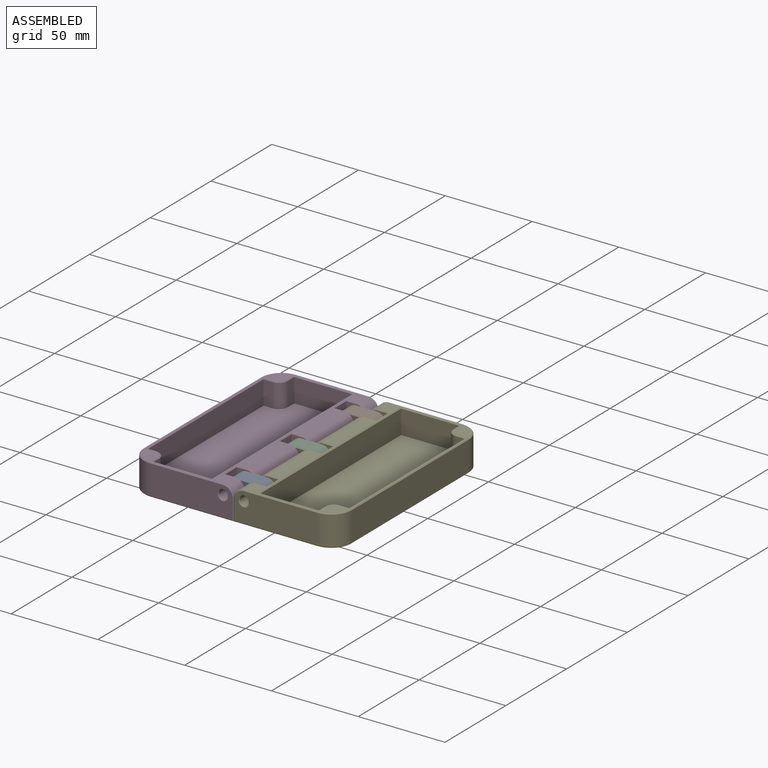
[diagram: assembled view]
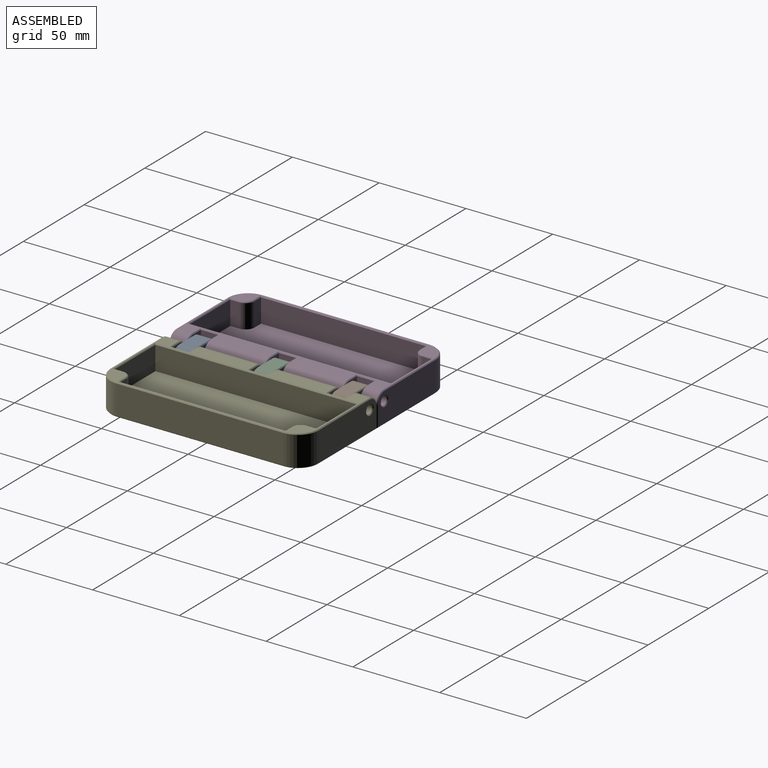
[diagram: assembled view, second angle]
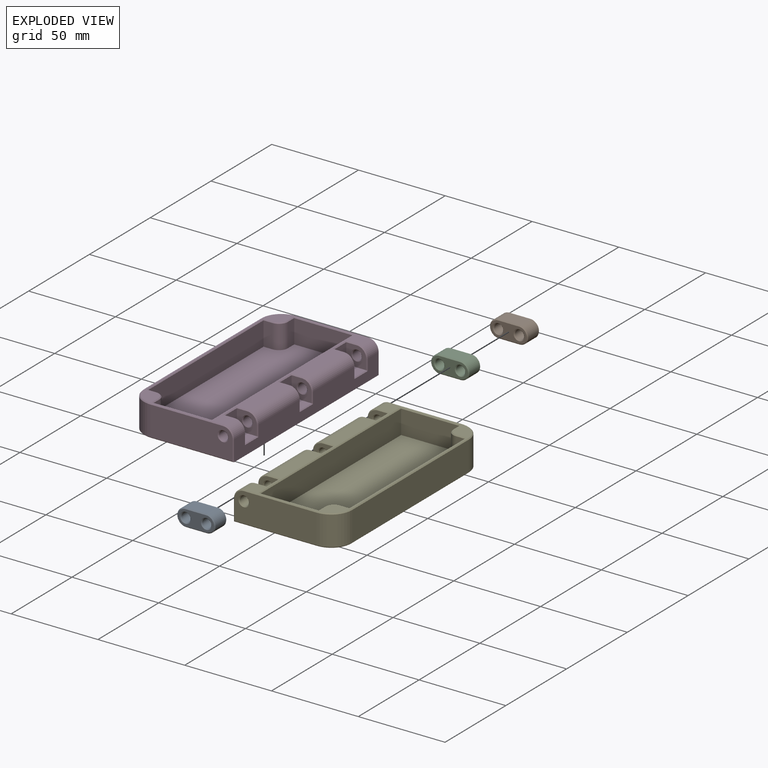
[diagram: exploded view]
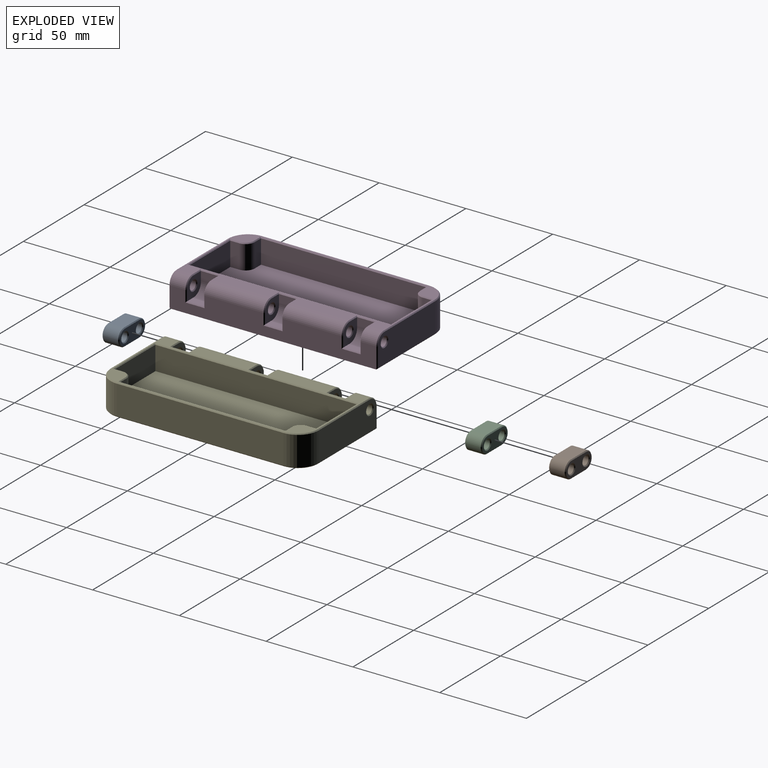
[diagram: exploded view, second angle]
ASSEMBLY  parts=5 mates=6
PART A: 20 faces, bbox 10x22x9.8 mm
  f0: plane 12x8.8mm, normal (1,0,0), area 105.6mm2, adj f1,f3,f8,f12
  f1: cylinder r=5mm len=10mm, axis (0,0,-1), area 138.2mm2, adj f0,f2,f9,f13
  f2: plane 12x8.8mm, normal (-1,0,0), area 105.6mm2, adj f1,f3,f11,f15
  f3: cylinder r=5mm len=10mm, axis (0,0,-1), area 138.2mm2, adj f0,f2,f10,f14
  f4: cylinder r=2.6mm len=8.8mm, axis (0,0,-1), area 143.8mm2, adj f17,f18
  f5: cylinder r=2.6mm len=8.8mm, axis (0,0,-1), area 143.8mm2, adj f16,f19
  f6: plane 21x9mm, normal (0,0,1), area 111.2mm2, adj f8,f9,f10,f11,f18,f19
  f7: plane 21x9mm, normal (0,0,-1), area 111.2mm2, adj f12,f13,f14,f15,f16,f17
  f8: plane 12x0.5mm, normal (0.71,0,0.71), area 8.5mm2, adj f0,f6,f9,f10
  f9: cone r=5mm half-angle=45deg, axis (0,0,-1), area 10.6mm2, adj f1,f6,f8,f11
  f10: cone r=5mm half-angle=45deg, axis (0,0,-1), area 10.6mm2, adj f3,f6,f8,f11
  f11: plane 12x0.5mm, normal (-0.71,0,0.71), area 8.5mm2, adj f2,f6,f9,f10
  f12: plane 12x0.5mm, normal (0.71,0,-0.71), area 8.5mm2, adj f0,f7,f13,f14
  f13: cone r=4.5mm half-angle=45deg, axis (0,0,1), area 10.6mm2, adj f1,f7,f12,f15
  f14: cone r=4.5mm half-angle=45deg, axis (0,0,1), area 10.6mm2, adj f3,f7,f12,f15
  f15: plane 12x0.5mm, normal (-0.71,0,-0.71), area 8.5mm2, adj f2,f7,f13,f14
  f16: cone r=3.1mm half-angle=45deg, axis (0,0,-1), area 12.7mm2, adj f5,f7
  f17: cone r=3.1mm half-angle=45deg, axis (0,0,-1), area 12.7mm2, adj f4,f7
  f18: cone r=2.6mm half-angle=45deg, axis (0,0,1), area 12.7mm2, adj f4,f6
  f19: cone r=2.6mm half-angle=45deg, axis (0,0,1), area 12.7mm2, adj f5,f6
PART B: same geometry as A
PART C: same geometry as A
PART D: 272 faces, bbox 60x120x18 mm
  f0: plane 119x59.5mm, normal (0,0,-1), area 5264.4mm2, adj f9,f88,f90,f92,f94,f96,f98,f99
  f1: cylinder r=6mm len=34mm, axis (0,-1,0), area 320.4mm2, adj f9,f10,f56,f59
  f2: cylinder r=6mm len=34mm, axis (0,-1,0), area 320.4mm2, adj f9,f10,f43,f51
  f3: cylinder r=6mm len=9mm, axis (0,-1,0), area 84.8mm2, adj f9,f10,f48,f84
  f4: plane 47.5x17mm, normal (0,1,0), area 770.8mm2, adj f5,f67,f84,f85,f86,f88
  f5: cylinder r=12mm len=17mm, axis (0,0,-1), area 320.4mm2, adj f4,f6,f87,f90
  f6: plane 96x17mm, normal (-1,0,0), area 1632mm2, adj f5,f7,f89,f92
  f7: cylinder r=12mm len=17mm, axis (0,0,-1), area 320.4mm2, adj f6,f8,f91,f94
  f8: plane 47.5x17mm, normal (0,-1,0), area 770.8mm2, adj f7,f66,f93,f95,f96,f97
  f9: plane 119x12mm, normal (1,0,0), area 1213.5mm2, adj f0,f1,f2,f3,f22,f42,f44,f46
  f10: plane 119x53.5mm, normal (0,0,1), area 1036.7mm2, adj f1,f2,f3,f22,f45,f47,f49,f53
  f11: cylinder r=5.2mm len=13.7mm, axis (0,0,-1), area 111.9mm2, adj f12,f20,f21,f74
  f12: plane 13.7x5.19mm, normal (0,-1,0), area 71.1mm2, adj f11,f13,f21,f76
  f13: plane 95.22x13.7mm, normal (1,0,0), area 1304.5mm2, adj f12,f14,f21,f78
  f14: plane 13.7x5.19mm, normal (0,1,0), area 71.1mm2, adj f13,f15,f21,f80
  f15: cylinder r=5.2mm len=13.7mm, axis (0,0,-1), area 111.9mm2, adj f14,f16,f21,f82
  f16: plane 13.7x5.19mm, normal (1,0,0), area 71.1mm2, adj f15,f17,f21,f83
  f17: plane 33.61x13.7mm, normal (0,1,0), area 460.4mm2, adj f16,f18,f21,f81
  f18: plane 116x13.7mm, normal (-1,0,0), area 1589.2mm2, adj f17,f19,f21,f79
  f19: plane 33.61x13.7mm, normal (0,-1,0), area 460.4mm2, adj f18,f20,f21,f77
  f20: plane 13.7x5.19mm, normal (1,0,0), area 71.1mm2, adj f11,f19,f21,f75
  f21: plane 116x44mm, normal (0,0,1), area 4899.6mm2, adj f11,f12,f13,f14,f15,f16,f17,f18
  f22: cylinder r=6mm len=9mm, axis (0,-1,0), area 84.8mm2, adj f9,f10,f64,f95
  f23: cylinder r=6mm len=10mm, axis (0,-1,0), area 94.2mm2, adj f24,f25,f26,f27
  f24: plane 10x5.5mm, normal (0,0,1), area 55mm2, adj f23,f26,f27,f44
  f25: plane 10x5.5mm, normal (1,0,0), area 55mm2, adj f23,f26,f27,f47
  f26: plane 11.5x11.5mm, normal (0,-1,0), area 87.8mm2, adj f23,f24,f25,f46,f48,f49,f68
  f27: plane 11.5x11.5mm, normal (0,1,0), area 87.8mm2, adj f23,f24,f25,f42,f43,f45,f69
  f28: cylinder r=6mm len=10mm, axis (0,-1,0), area 94.2mm2, adj f29,f30,f31,f32
  f29: plane 10x5.5mm, normal (0,0,1), area 55mm2, adj f28,f31,f32,f52
  f30: plane 10x5.5mm, normal (1,0,0), area 55mm2, adj f28,f31,f32,f55
  f31: plane 11.5x11.5mm, normal (0,-1,0), area 87.8mm2, adj f28,f29,f30,f50,f51,f53,f71
  f32: plane 11.5x11.5mm, normal (0,1,0), area 87.8mm2, adj f28,f29,f30,f54,f56,f57,f70
  f33: cylinder r=6mm len=10mm, axis (0,-1,0), area 94.2mm2, adj f34,f35,f36,f37
  f34: plane 10x5.5mm, normal (0,0,1), area 55mm2, adj f33,f36,f37,f60
  f35: plane 10x5.5mm, normal (1,0,0), area 55mm2, adj f33,f36,f37,f63
  f36: plane 11.5x11.5mm, normal (0,-1,0), area 87.8mm2, adj f33,f34,f35,f58,f59,f61,f73
  f37: plane 11.5x11.5mm, normal (0,1,0), area 87.8mm2, adj f33,f34,f35,f62,f64,f65,f72
  f38: cylinder r=2.6mm len=9mm, axis (0,-1,0), area 147mm2, adj f66,f72
  f39: cylinder r=2.6mm len=34mm, axis (0,-1,0), area 555.4mm2, adj f70,f73
  f40: cylinder r=2.6mm len=34mm, axis (0,-1,0), area 555.4mm2, adj f69,f71
  f41: cylinder r=2.6mm len=9mm, axis (0,-1,0), area 147mm2, adj f67,f68
  f42: plane 6.5x0.5mm, normal (0.71,0.71,0), area 4.4mm2, adj f9,f27,f43,f44
  f43: cone r=5.5mm half-angle=45deg, axis (0,-1,0), area 6.4mm2, adj f2,f27,f42,f45
  f44: plane 11x0.5mm, normal (0.71,0,0.71), area 7.4mm2, adj f9,f24,f42,f46
  f45: plane 6.5x0.5mm, normal (0,0.71,0.71), area 4.4mm2, adj f10,f27,f43,f47
  f46: plane 6.5x0.5mm, normal (0.71,-0.71,0), area 4.4mm2, adj f9,f26,f44,f48
  f47: plane 11x0.5mm, normal (0.71,0,0.71), area 7.4mm2, adj f10,f25,f45,f49
  f48: cone r=6mm half-angle=45deg, axis (0,1,0), area 6.4mm2, adj f3,f26,f46,f49
  f49: plane 6.5x0.5mm, normal (0,-0.71,0.71), area 4.4mm2, adj f10,f26,f47,f48
  f50: plane 6.5x0.5mm, normal (0.71,-0.71,0), area 4.4mm2, adj f9,f31,f51,f52
  f51: cone r=6mm half-angle=45deg, axis (0,1,0), area 6.4mm2, adj f2,f31,f50,f53
  f52: plane 11x0.5mm, normal (0.71,0,0.71), area 7.4mm2, adj f9,f29,f50,f54
  f53: plane 6.5x0.5mm, normal (0,-0.71,0.71), area 4.4mm2, adj f10,f31,f51,f55
  f54: plane 6.5x0.5mm, normal (0.71,0.71,0), area 4.4mm2, adj f9,f32,f52,f56
  f55: plane 11x0.5mm, normal (0.71,0,0.71), area 7.4mm2, adj f10,f30,f53,f57
  f56: cone r=5.5mm half-angle=45deg, axis (0,-1,0), area 6.4mm2, adj f1,f32,f54,f57
  f57: plane 6.5x0.5mm, normal (0,0.71,0.71), area 4.4mm2, adj f10,f32,f55,f56
  f58: plane 6.5x0.5mm, normal (0.71,-0.71,0), area 4.4mm2, adj f9,f36,f59,f60
  f59: cone r=6mm half-angle=45deg, axis (0,1,0), area 6.4mm2, adj f1,f36,f58,f61
  f60: plane 11x0.5mm, normal (0.71,0,0.71), area 7.4mm2, adj f9,f34,f58,f62
  f61: plane 6.5x0.5mm, normal (0,-0.71,0.71), area 4.4mm2, adj f10,f36,f59,f63
  f62: plane 6.5x0.5mm, normal (0.71,0.71,0), area 4.4mm2, adj f9,f37,f60,f64
  f63: plane 11x0.5mm, normal (0.71,0,0.71), area 7.4mm2, adj f10,f35,f61,f65
  f64: cone r=5.5mm half-angle=45deg, axis (0,-1,0), area 6.4mm2, adj f22,f37,f62,f65
  f65: plane 6.5x0.5mm, normal (0,0.71,0.71), area 4.4mm2, adj f10,f37,f63,f64
  f66: cone r=2.6mm half-angle=45deg, axis (0,-1,0), area 12.7mm2, adj f8,f38
  f67: cone r=2.6mm half-angle=45deg, axis (0,1,0), area 12.7mm2, adj f4,f41
  f68: cone r=2.6mm half-angle=45deg, axis (0,-1,0), area 12.7mm2, adj f26,f41
  f69: cone r=3.1mm half-angle=45deg, axis (0,1,0), area 12.7mm2, adj f27,f40
  f70: cone r=3.1mm half-angle=45deg, axis (0,1,0), area 12.7mm2, adj f32,f39
  f71: cone r=2.6mm half-angle=45deg, axis (0,-1,0), area 12.7mm2, adj f31,f40
  f72: cone r=3.1mm half-angle=45deg, axis (0,1,0), area 12.7mm2, adj f37,f38
  f73: cone r=2.6mm half-angle=45deg, axis (0,-1,0), area 12.7mm2, adj f36,f39
  f74: cone r=5.2mm half-angle=45deg, axis (0,0,-1), area 5.5mm2, adj f10,f11,f75,f76
  f75: plane 5.69x0.5mm, normal (0.71,0,0.71), area 3.8mm2, adj f10,f20,f74,f77
  f76: plane 5.69x0.5mm, normal (0,-0.71,0.71), area 3.8mm2, adj f10,f12,f74,f78
  f77: plane 34.61x0.5mm, normal (0,-0.71,0.71), area 24.1mm2, adj f10,f19,f75,f79
  f78: plane 96.22x0.5mm, normal (0.71,0,0.71), area 67.7mm2, adj f10,f13,f76,f80
  f79: plane 117x0.5mm, normal (-0.71,0,0.71), area 82.4mm2, adj f10,f18,f77,f81
  f80: plane 5.69x0.5mm, normal (0,0.71,0.71), area 3.8mm2, adj f10,f14,f78,f82
  f81: plane 34.61x0.5mm, normal (0,0.71,0.71), area 24.1mm2, adj f10,f17,f79,f83
  f82: cone r=4.7mm half-angle=45deg, axis (0,0,-1), area 5.5mm2, adj f10,f15,f80,f83
  f83: plane 5.69x0.5mm, normal (0.71,0,0.71), area 3.8mm2, adj f10,f16,f81,f82
  f84: cone r=5.5mm half-angle=45deg, axis (0,-1,0), area 6.4mm2, adj f3,f4,f85,f86
  f85: plane 42x0.5mm, normal (0,0.71,0.71), area 29.7mm2, adj f4,f10,f84,f87
  f86: plane 12x0.5mm, normal (0.71,0.71,0), area 8.3mm2, adj f4,f9,f84,f88
  f87: cone r=11.5mm half-angle=45deg, axis (0,0,-1), area 13.1mm2, adj f5,f10,f85,f89
  f88: plane 48x0.5mm, normal (0,0.71,-0.71), area 33.8mm2, adj f0,f4,f86,f90
  f89: plane 96x0.5mm, normal (-0.71,0,0.71), area 67.9mm2, adj f6,f10,f87,f91
  f90: cone r=12mm half-angle=45deg, axis (0,0,1), area 13.1mm2, adj f0,f5,f88,f92
  f91: cone r=12mm half-angle=45deg, axis (0,0,-1), area 13.1mm2, adj f7,f10,f89,f93
  f92: plane 96x0.5mm, normal (-0.71,0,-0.71), area 67.9mm2, adj f0,f6,f90,f94
  f93: plane 42x0.5mm, normal (0,-0.71,0.71), area 29.7mm2, adj f8,f10,f91,f95
  f94: cone r=11.5mm half-angle=45deg, axis (0,0,1), area 13.1mm2, adj f0,f7,f92,f96
  f95: cone r=5.5mm half-angle=45deg, axis (0,1,0), area 6.4mm2, adj f8,f22,f93,f97
  f96: plane 48x0.5mm, normal (0,-0.71,-0.71), area 33.8mm2, adj f0,f8,f94,f97
  f97: plane 12x0.5mm, normal (0.71,-0.71,0), area 8.3mm2, adj f8,f9,f95,f96
  f98: plane 8x0.2mm, normal (1,0,0), area 1.6mm2, adj f0,f99,f113,f114
  f99: cylinder r=3.6mm len=3.6mm, axis (0,0,-1), area 1.1mm2, adj f0,f98,f100,f114
  f100: plane 8x0.2mm, normal (0,-1,0), area 1.6mm2, adj f0,f99,f101,f114
  f101: cylinder r=3.6mm len=3.6mm, axis (0,0,-1), area 1.1mm2, adj f0,f100,f102,f114
  f102: plane 8x0.2mm, normal (-1,0,0), area 1.6mm2, adj f0,f101,f103,f114
  f103: cylinder r=3.6mm len=3.6mm, axis (0,0,-1), area 1.1mm2, adj f0,f102,f104,f114
  f104: plane 8x0.2mm, normal (0,1,0), area 1.6mm2, adj f0,f103,f113,f114
  f105: cylinder r=2mm len=2mm, axis (0,0,-1), area 0.6mm2, adj f106,f112,f114,f115
  f106: plane 8x0.2mm, normal (0,1,0), area 1.6mm2, adj f105,f107,f114,f115
  f107: cylinder r=2mm len=2mm, axis (0,0,-1), area 0.6mm2, adj f106,f108,f114,f115
  f108: plane 8x0.2mm, normal (-1,0,0), area 1.6mm2, adj f107,f109,f114,f115
  f109: cylinder r=2mm len=2mm, axis (0,0,-1), area 0.6mm2, adj f108,f110,f114,f115
  f110: plane 8x0.2mm, normal (0,-1,0), area 1.6mm2, adj f109,f111,f114,f115
  f111: cylinder r=2mm len=2mm, axis (0,0,-1), area 0.6mm2, adj f110,f112,f114,f115
  f112: plane 8x0.2mm, normal (1,0,0), area 1.6mm2, adj f105,f111,f114,f115
  f113: cylinder r=3.6mm len=3.6mm, axis (0,0,-1), area 1.1mm2, adj f0,f98,f104,f114
  f114: plane 15.2x15.2mm, normal (0,0,-1), area 79.3mm2, adj f98,f99,f100,f101,f102,f103,f104,f105
  f115: plane 12x12mm, normal (0,0,-1), area 140.6mm2, adj f105,f106,f107,f108,f109,f110,f111,f112
  f116: cylinder r=2mm len=2mm, axis (0,0,-1), area 0.6mm2, adj f117,f131,f132,f235
  f117: plane 8x0.2mm, normal (-1,0,0), area 1.6mm2, adj f116,f118,f132,f235
  f118: cylinder r=2mm len=2mm, axis (0,0,-1), area 0.6mm2, adj f117,f119,f132,f235
  f119: plane 8x0.2mm, normal (0,-1,0), area 1.6mm2, adj f118,f120,f132,f235
  f120: cylinder r=2mm len=2mm, axis (0,0,-1), area 0.6mm2, adj f119,f121,f132,f235
  f121: plane 8x0.2mm, normal (1,0,0), area 1.6mm2, adj f120,f122,f132,f235
  f122: cylinder r=2mm len=2mm, axis (0,0,-1), area 0.6mm2, adj f121,f131,f132,f235
  f123: plane 8x0.2mm, normal (0,-1,0), area 1.6mm2, adj f0,f124,f130,f132
  f124: cylinder r=3.6mm len=3.6mm, axis (0,0,-1), area 1.1mm2, adj f0,f123,f125,f132
  f125: plane 8x0.2mm, normal (-1,0,0), area 1.6mm2, adj f0,f124,f126,f132
  f126: cylinder r=3.6mm len=3.6mm, axis (0,0,-1), area 1.1mm2, adj f0,f125,f127,f132
  f127: plane 8x0.2mm, normal (0,1,0), area 1.6mm2, adj f0,f126,f128,f132
  f128: cylinder r=3.6mm len=3.6mm, axis (0,0,-1), area 1.1mm2, adj f0,f127,f129,f132
  f129: plane 8x0.2mm, normal (1,0,0), area 1.6mm2, adj f0,f128,f130,f132
  f130: cylinder r=3.6mm len=3.6mm, axis (0,0,-1), area 1.1mm2, adj f0,f123,f129,f132
  f131: plane 8x0.2mm, normal (0,1,0), area 1.6mm2, adj f116,f122,f132,f235
  f132: plane 15.2x15.2mm, normal (0,0,-1), area 79.3mm2, adj f116,f117,f118,f119,f120,f121,f122,f123
  f133: cylinder r=2mm len=2mm, axis (0,0,-1), area 0.6mm2, adj f134,f148,f149,f236
  f134: plane 8x0.2mm, normal (-1,0,0), area 1.6mm2, adj f133,f135,f149,f236
  f135: cylinder r=2mm len=2mm, axis (0,0,-1), area 0.6mm2, adj f134,f136,f149,f236
  f136: plane 8x0.2mm, normal (0,-1,0), area 1.6mm2, adj f135,f137,f149,f236
  f137: cylinder r=2mm len=2mm, axis (0,0,-1), area 0.6mm2, adj f136,f138,f149,f236
  f138: plane 8x0.2mm, normal (1,0,0), area 1.6mm2, adj f137,f139,f149,f236
  f139: cylinder r=2mm len=2mm, axis (0,0,-1), area 0.6mm2, adj f138,f148,f149,f236
  f140: plane 8x0.2mm, normal (0,-1,0), area 1.6mm2, adj f0,f141,f147,f149
  f141: cylinder r=3.6mm len=3.6mm, axis (0,0,-1), area 1.1mm2, adj f0,f140,f142,f149
  f142: plane 8x0.2mm, normal (-1,0,0), area 1.6mm2, adj f0,f141,f143,f149
  f143: cylinder r=3.6mm len=3.6mm, axis (0,0,-1), area 1.1mm2, adj f0,f142,f144,f149
  f144: plane 8x0.2mm, normal (0,1,0), area 1.6mm2, adj f0,f143,f145,f149
  f145: cylinder r=3.6mm len=3.6mm, axis (0,0,-1), area 1.1mm2, adj f0,f144,f146,f149
  f146: plane 8x0.2mm, normal (1,0,0), area 1.6mm2, adj f0,f145,f147,f149
  f147: cylinder r=3.6mm len=3.6mm, axis (0,0,-1), area 1.1mm2, adj f0,f140,f146,f149
  f148: plane 8x0.2mm, normal (0,1,0), area 1.6mm2, adj f133,f139,f149,f236
  f149: plane 15.2x15.2mm, normal (0,0,-1), area 79.3mm2, adj f133,f134,f135,f136,f137,f138,f139,f140
  f150: cylinder r=2mm len=2mm, axis (0,0,-1), area 0.6mm2, adj f151,f165,f166,f237
  f151: plane 8x0.2mm, normal (-1,0,0), area 1.6mm2, adj f150,f152,f166,f237
  f152: cylinder r=2mm len=2mm, axis (0,0,-1), area 0.6mm2, adj f151,f153,f166,f237
  f153: plane 8x0.2mm, normal (0,-1,0), area 1.6mm2, adj f152,f154,f166,f237
  f154: cylinder r=2mm len=2mm, axis (0,0,-1), area 0.6mm2, adj f153,f155,f166,f237
  f155: plane 8x0.2mm, normal (1,0,0), area 1.6mm2, adj f154,f156,f166,f237
  f156: cylinder r=2mm len=2mm, axis (0,0,-1), area 0.6mm2, adj f155,f165,f166,f237
  f157: plane 8x0.2mm, normal (0,-1,0), area 1.6mm2, adj f0,f158,f164,f166
  f158: cylinder r=3.6mm len=3.6mm, axis (0,0,-1), area 1.1mm2, adj f0,f157,f159,f166
  f159: plane 8x0.2mm, normal (-1,0,0), area 1.6mm2, adj f0,f158,f160,f166
  f160: cylinder r=3.6mm len=3.6mm, axis (0,0,-1), area 1.1mm2, adj f0,f159,f161,f166
  f161: plane 8x0.2mm, normal (0,1,0), area 1.6mm2, adj f0,f160,f162,f166
  f162: cylinder r=3.6mm len=3.6mm, axis (0,0,-1), area 1.1mm2, adj f0,f161,f163,f166
  f163: plane 8x0.2mm, normal (1,0,0), area 1.6mm2, adj f0,f162,f164,f166
  f164: cylinder r=3.6mm len=3.6mm, axis (0,0,-1), area 1.1mm2, adj f0,f157,f163,f166
  f165: plane 8x0.2mm, normal (0,1,0), area 1.6mm2, adj f150,f156,f166,f237
  f166: plane 15.2x15.2mm, normal (0,0,-1), area 79.3mm2, adj f150,f151,f152,f153,f154,f155,f156,f157
  f167: cylinder r=2mm len=2mm, axis (0,0,-1), area 0.6mm2, adj f168,f182,f183,f238
  f168: plane 8x0.2mm, normal (-1,0,0), area 1.6mm2, adj f167,f169,f183,f238
  f169: cylinder r=2mm len=2mm, axis (0,0,-1), area 0.6mm2, adj f168,f170,f183,f238
  f170: plane 8x0.2mm, normal (0,-1,0), area 1.6mm2, adj f169,f171,f183,f238
  f171: cylinder r=2mm len=2mm, axis (0,0,-1), area 0.6mm2, adj f170,f172,f183,f238
  f172: plane 8x0.2mm, normal (1,0,0), area 1.6mm2, adj f171,f173,f183,f238
  f173: cylinder r=2mm len=2mm, axis (0,0,-1), area 0.6mm2, adj f172,f182,f183,f238
  f174: plane 8x0.2mm, normal (0,-1,0), area 1.6mm2, adj f0,f175,f181,f183
  f175: cylinder r=3.6mm len=3.6mm, axis (0,0,-1), area 1.1mm2, adj f0,f174,f176,f183
  f176: plane 8x0.2mm, normal (-1,0,0), area 1.6mm2, adj f0,f175,f177,f183
  f177: cylinder r=3.6mm len=3.6mm, axis (0,0,-1), area 1.1mm2, adj f0,f176,f178,f183
  f178: plane 8x0.2mm, normal (0,1,0), area 1.6mm2, adj f0,f177,f179,f183
  f179: cylinder r=3.6mm len=3.6mm, axis (0,0,-1), area 1.1mm2, adj f0,f178,f180,f183
  f180: plane 8x0.2mm, normal (1,0,0), area 1.6mm2, adj f0,f179,f181,f183
  f181: cylinder r=3.6mm len=3.6mm, axis (0,0,-1), area 1.1mm2, adj f0,f174,f180,f183
  f182: plane 8x0.2mm, normal (0,1,0), area 1.6mm2, adj f167,f173,f183,f238
  f183: plane 15.2x15.2mm, normal (0,0,-1), area 79.3mm2, adj f167,f168,f169,f170,f171,f172,f173,f174
  f184: cylinder r=2mm len=2mm, axis (0,0,-1), area 0.6mm2, adj f185,f199,f200,f239
  f185: plane 8x0.2mm, normal (-1,0,0), area 1.6mm2, adj f184,f186,f200,f239
  f186: cylinder r=2mm len=2mm, axis (0,0,-1), area 0.6mm2, adj f185,f187,f200,f239
  f187: plane 8x0.2mm, normal (0,-1,0), area 1.6mm2, adj f186,f188,f200,f239
  f188: cylinder r=2mm len=2mm, axis (0,0,-1), area 0.6mm2, adj f187,f189,f200,f239
  f189: plane 8x0.2mm, normal (1,0,0), area 1.6mm2, adj f188,f190,f200,f239
  f190: cylinder r=2mm len=2mm, axis (0,0,-1), area 0.6mm2, adj f189,f199,f200,f239
  f191: plane 8x0.2mm, normal (0,-1,0), area 1.6mm2, adj f0,f192,f198,f200
  f192: cylinder r=3.6mm len=3.6mm, axis (0,0,-1), area 1.1mm2, adj f0,f191,f193,f200
  f193: plane 8x0.2mm, normal (-1,0,0), area 1.6mm2, adj f0,f192,f194,f200
  f194: cylinder r=3.6mm len=3.6mm, axis (0,0,-1), area 1.1mm2, adj f0,f193,f195,f200
  f195: plane 8x0.2mm, normal (0,1,0), area 1.6mm2, adj f0,f194,f196,f200
  f196: cylinder r=3.6mm len=3.6mm, axis (0,0,-1), area 1.1mm2, adj f0,f195,f197,f200
  f197: plane 8x0.2mm, normal (1,0,0), area 1.6mm2, adj f0,f196,f198,f200
  f198: cylinder r=3.6mm len=3.6mm, axis (0,0,-1), area 1.1mm2, adj f0,f191,f197,f200
  f199: plane 8x0.2mm, normal (0,1,0), area 1.6mm2, adj f184,f190,f200,f239
  f200: plane 15.2x15.2mm, normal (0,0,-1), area 79.3mm2, adj f184,f185,f186,f187,f188,f189,f190,f191
  f201: cylinder r=2mm len=2mm, axis (0,0,-1), area 0.6mm2, adj f202,f216,f217,f240
  f202: plane 8x0.2mm, normal (-1,0,0), area 1.6mm2, adj f201,f203,f217,f240
  f203: cylinder r=2mm len=2mm, axis (0,0,-1), area 0.6mm2, adj f202,f204,f217,f240
  f204: plane 8x0.2mm, normal (0,-1,0), area 1.6mm2, adj f203,f205,f217,f240
  f205: cylinder r=2mm len=2mm, axis (0,0,-1), area 0.6mm2, adj f204,f206,f217,f240
  f206: plane 8x0.2mm, normal (1,0,0), area 1.6mm2, adj f205,f207,f217,f240
  f207: cylinder r=2mm len=2mm, axis (0,0,-1), area 0.6mm2, adj f206,f216,f217,f240
  f208: plane 8x0.2mm, normal (0,-1,0), area 1.6mm2, adj f0,f209,f215,f217
  f209: cylinder r=3.6mm len=3.6mm, axis (0,0,-1), area 1.1mm2, adj f0,f208,f210,f217
  f210: plane 8x0.2mm, normal (-1,0,0), area 1.6mm2, adj f0,f209,f211,f217
  f211: cylinder r=3.6mm len=3.6mm, axis (0,0,-1), area 1.1mm2, adj f0,f210,f212,f217
  f212: plane 8x0.2mm, normal (0,1,0), area 1.6mm2, adj f0,f211,f213,f217
  f213: cylinder r=3.6mm len=3.6mm, axis (0,0,-1), area 1.1mm2, adj f0,f212,f214,f217
  f214: plane 8x0.2mm, normal (1,0,0), area 1.6mm2, adj f0,f213,f215,f217
  f215: cylinder r=3.6mm len=3.6mm, axis (0,0,-1), area 1.1mm2, adj f0,f208,f214,f217
  f216: plane 8x0.2mm, normal (0,1,0), area 1.6mm2, adj f201,f207,f217,f240
  f217: plane 15.2x15.2mm, normal (0,0,-1), area 79.3mm2, adj f201,f202,f203,f204,f205,f206,f207,f208
  f218: cylinder r=2mm len=2mm, axis (0,0,-1), area 0.6mm2, adj f219,f233,f234,f241
  f219: plane 8x0.2mm, normal (-1,0,0), area 1.6mm2, adj f218,f220,f234,f241
  f220: cylinder r=2mm len=2mm, axis (0,0,-1), area 0.6mm2, adj f219,f221,f234,f241
  f221: plane 8x0.2mm, normal (0,-1,0), area 1.6mm2, adj f220,f222,f234,f241
  f222: cylinder r=2mm len=2mm, axis (0,0,-1), area 0.6mm2, adj f221,f223,f234,f241
  f223: plane 8x0.2mm, normal (1,0,0), area 1.6mm2, adj f222,f224,f234,f241
  f224: cylinder r=2mm len=2mm, axis (0,0,-1), area 0.6mm2, adj f223,f233,f234,f241
  f225: plane 8x0.2mm, normal (0,-1,0), area 1.6mm2, adj f0,f226,f232,f234
  f226: cylinder r=3.6mm len=3.6mm, axis (0,0,-1), area 1.1mm2, adj f0,f225,f227,f234
  f227: plane 8x0.2mm, normal (-1,0,0), area 1.6mm2, adj f0,f226,f228,f234
  f228: cylinder r=3.6mm len=3.6mm, axis (0,0,-1), area 1.1mm2, adj f0,f227,f229,f234
  f229: plane 8x0.2mm, normal (0,1,0), area 1.6mm2, adj f0,f228,f230,f234
  f230: cylinder r=3.6mm len=3.6mm, axis (0,0,-1), area 1.1mm2, adj f0,f229,f231,f234
  f231: plane 8x0.2mm, normal (1,0,0), area 1.6mm2, adj f0,f230,f232,f234
  f232: cylinder r=3.6mm len=3.6mm, axis (0,0,-1), area 1.1mm2, adj f0,f225,f231,f234
  f233: plane 8x0.2mm, normal (0,1,0), area 1.6mm2, adj f218,f224,f234,f241
  f234: plane 15.2x15.2mm, normal (0,0,-1), area 79.3mm2, adj f218,f219,f220,f221,f222,f223,f224,f225
  f235: plane 12x12mm, normal (0,0,-1), area 140.6mm2, adj f116,f117,f118,f119,f120,f121,f122,f131
  f236: plane 12x12mm, normal (0,0,-1), area 140.6mm2, adj f133,f134,f135,f136,f137,f138,f139,f148
  f237: plane 12x12mm, normal (0,0,-1), area 140.6mm2, adj f150,f151,f152,f153,f154,f155,f156,f165
  f238: plane 12x12mm, normal (0,0,-1), area 140.6mm2, adj f167,f168,f169,f170,f171,f172,f173,f182
  f239: plane 12x12mm, normal (0,0,-1), area 140.6mm2, adj f184,f185,f186,f187,f188,f189,f190,f199
  f240: plane 12x12mm, normal (0,0,-1), area 140.6mm2, adj f201,f202,f203,f204,f205,f206,f207,f216
  f241: plane 12x12mm, normal (0,0,-1), area 140.6mm2, adj f218,f219,f220,f221,f222,f223,f224,f233
  f242: plane 6.4x6.4mm, normal (0,0,-1), area 32.2mm2, adj f243
  f243: cylinder r=3.2mm len=6.4mm, axis (0,0,-1), area 66.4mm2, adj f242,f244
  f244: plane 6.4x6.4mm, normal (0,0,1), area 32.2mm2, adj f243
  f245: plane 6.4x6.4mm, normal (0,0,-1), area 32.2mm2, adj f247
  f246: plane 6.4x6.4mm, normal (0,0,1), area 32.2mm2, adj f247
  f247: cylinder r=3.2mm len=6.4mm, axis (0,0,-1), area 66.4mm2, adj f245,f246
  f248: cylinder r=4.25mm len=8.5mm, axis (0,0,-1), area 56.1mm2, adj f249,f250
  f249: plane 8.5x8.5mm, normal (0,0,-1), area 56.7mm2, adj f248
  f250: plane 8.5x8.5mm, normal (0,0,1), area 56.7mm2, adj f248
  f251: cylinder r=4.25mm len=8.5mm, axis (0,0,-1), area 56.1mm2, adj f252,f253
  f252: plane 8.5x8.5mm, normal (0,0,-1), area 56.7mm2, adj f251
  f253: plane 8.5x8.5mm, normal (0,0,1), area 56.7mm2, adj f251
  f254: cylinder r=4.25mm len=8.5mm, axis (0,0,-1), area 56.1mm2, adj f255,f256
  f255: plane 8.5x8.5mm, normal (0,0,-1), area 56.7mm2, adj f254
  f256: plane 8.5x8.5mm, normal (0,0,1), area 56.7mm2, adj f254
  f257: cylinder r=4.25mm len=8.5mm, axis (0,0,-1), area 56.1mm2, adj f258,f259
  f258: plane 8.5x8.5mm, normal (0,0,-1), area 56.7mm2, adj f257
  f259: plane 8.5x8.5mm, normal (0,0,1), area 56.7mm2, adj f257
  f260: cylinder r=4.25mm len=8.5mm, axis (0,0,-1), area 56.1mm2, adj f261,f262
  f261: plane 8.5x8.5mm, normal (0,0,-1), area 56.7mm2, adj f260
  f262: plane 8.5x8.5mm, normal (0,0,1), area 56.7mm2, adj f260
  f263: cylinder r=4.25mm len=8.5mm, axis (0,0,-1), area 56.1mm2, adj f264,f265
  f264: plane 8.5x8.5mm, normal (0,0,-1), area 56.7mm2, adj f263
  f265: plane 8.5x8.5mm, normal (0,0,1), area 56.7mm2, adj f263
  f266: cylinder r=4.25mm len=8.5mm, axis (0,0,-1), area 56.1mm2, adj f267,f268
  f267: plane 8.5x8.5mm, normal (0,0,-1), area 56.7mm2, adj f266
  f268: plane 8.5x8.5mm, normal (0,0,1), area 56.7mm2, adj f266
  f269: cylinder r=4.25mm len=8.5mm, axis (0,0,-1), area 56.1mm2, adj f270,f271
  f270: plane 8.5x8.5mm, normal (0,0,-1), area 56.7mm2, adj f269
  f271: plane 8.5x8.5mm, normal (0,0,1), area 56.7mm2, adj f269
PART E: same geometry as D
PLACE A rot(axis=(-0.58,-0.58,-0.58),120deg) t=(-33.94,-49.9,112.1)mm
PLACE B rot(axis=(-0.58,-0.58,-0.58),120deg) t=(-33.94,40.1,112.1)mm
PLACE C rot(axis=(-0.58,-0.58,-0.58),120deg) t=(-33.94,-4.9,112.1)mm
PLACE D t=(-29.96,0,0)mm
PLACE E rot(axis=(0,0,1),180deg) t=(90.04,0,0)mm
MATE revolute A.f1 <-> E.f38  axis (0,-1,0) through (36.04,-45,12.2)mm
MATE revolute C.f3 <-> D.f38  axis (0,-1,0) through (24.04,0,12.2)mm
MATE revolute E.f38 <-> C.f1  axis (0,1,0) through (36.04,0,12.2)mm
MATE revolute B.f3 <-> D.f38  axis (0,-1,0) through (24.04,45,12.2)mm
MATE revolute A.f3 <-> D.f38  axis (0,-1,0) through (24.04,-45,12.2)mm
MATE revolute E.f38 <-> B.f1  axis (0,1,0) through (36.04,45,12.2)mm
